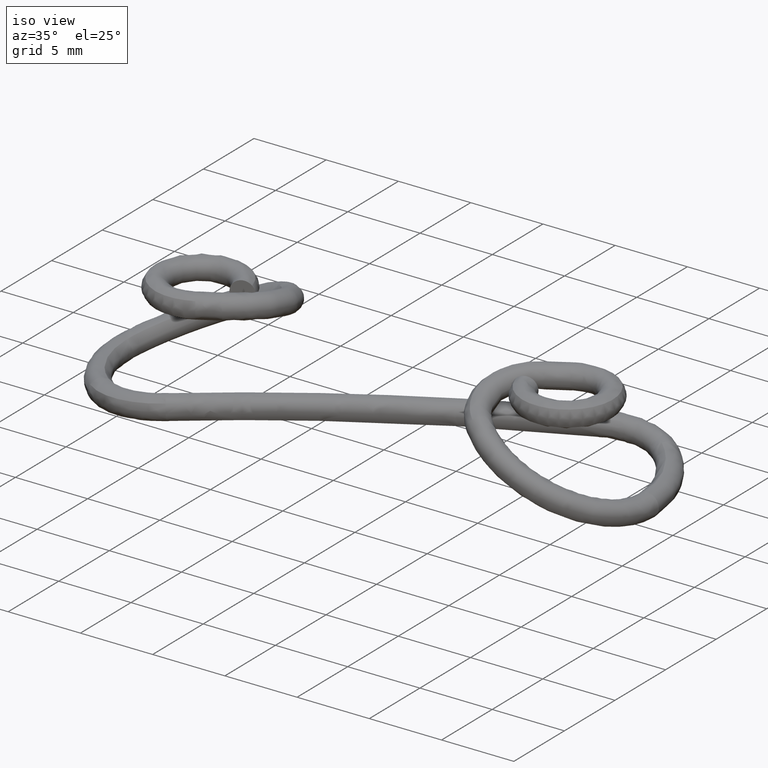
[diagram: clean part render]
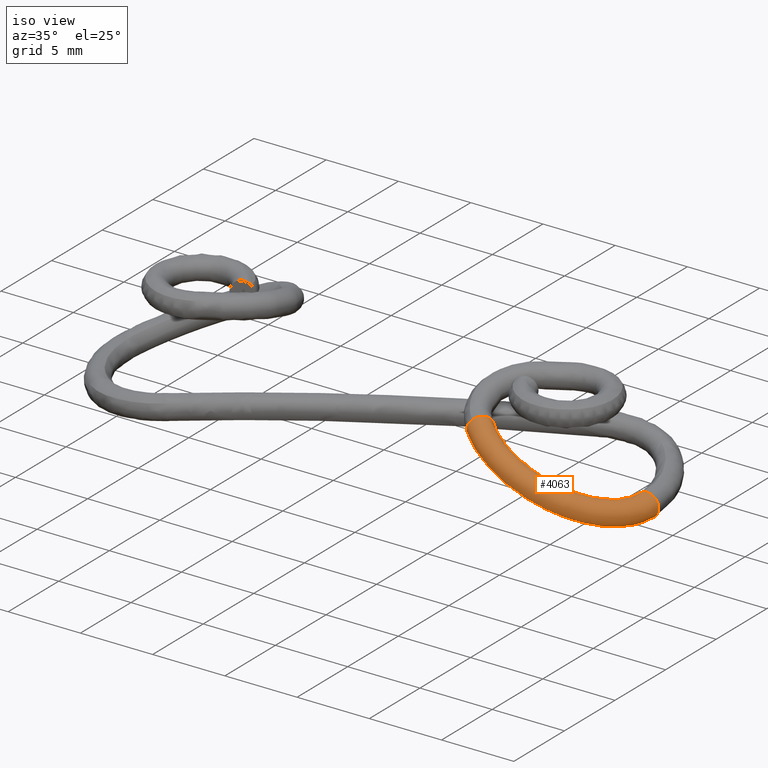
[diagram: same view with one face highlighted and labeled with its STEP entity id]
A machine part, iso view. The second image highlights one B-rep face of the part: STEP entity #4063.
In plain terms, the highlighted face is a freeform B-spline surface patch.
Its self-contained STEP definition (entity closure, byte-faithful):
#3264=CARTESIAN_POINT('',(9.303536115025272,-4.551449113464798,3.544073983156877));
#3265=VERTEX_POINT('',#3264);
#3291=CARTESIAN_POINT('',(9.893940836987280,-3.403851617559605,2.695563860032720));
#3292=VERTEX_POINT('',#3291);
#3293=CARTESIAN_POINT('',(9.303536115025272,-4.551449113464798,3.544073983156877));
#3294=CARTESIAN_POINT('',(9.314454096867252,-4.543565124474506,3.554384428957134));
#3295=CARTESIAN_POINT('',(9.325476085101704,-4.535350497602374,3.564294950743459));
#3296=CARTESIAN_POINT('',(9.353705779416730,-4.513673575982697,3.588435211506533));
#3297=CARTESIAN_POINT('',(9.371062989772804,-4.499752542904772,3.602122319208692));
#3298=CARTESIAN_POINT('',(9.406289180130157,-4.470284343511936,3.627530233524742));
#3299=CARTESIAN_POINT('',(9.424242949579728,-4.454655614507444,3.639291469439410));
#3300=CARTESIAN_POINT('',(9.477746062591674,-4.406239930035880,3.670751065305971));
#3301=CARTESIAN_POINT('',(9.513224197654303,-4.371683887905220,3.686833291477659));
#3302=CARTESIAN_POINT('',(9.583817984563090,-4.298238392648185,3.709697811936602));
#3303=CARTESIAN_POINT('',(9.619209649319751,-4.259002312428208,3.716453536382121));
#3304=CARTESIAN_POINT('',(9.686819405503279,-4.179357737374394,3.720215067471328));
#3305=CARTESIAN_POINT('',(9.719351698603619,-4.138658293612459,3.717392713500819));
#3306=CARTESIAN_POINT('',(9.766189145233945,-4.076257475390654,3.705911795079174));
#3307=CARTESIAN_POINT('',(9.781482202289277,-4.055205352103936,3.700842539673372));
#3308=CARTESIAN_POINT('',(9.810720636122870,-4.013562562628996,3.688433734000667));
#3309=CARTESIAN_POINT('',(9.824754459297367,-3.992856933411033,3.681078103836368));
#3310=CARTESIAN_POINT('',(9.865086774504915,-3.931089913919157,3.655532004474971));
#3311=CARTESIAN_POINT('',(9.889675219525786,-3.890234477586101,3.633720807846341));
#3312=CARTESIAN_POINT('',(9.933663399279103,-3.810104333524800,3.580975576476869));
#3313=CARTESIAN_POINT('',(9.952527409674932,-3.771866370283636,3.550802523422350));
#3314=CARTESIAN_POINT('',(9.976414236736849,-3.717083211855429,3.500189422232661));
#3315=CARTESIAN_POINT('',(9.983634419414610,-3.699255342709745,3.482417358669702));
#3316=CARTESIAN_POINT('',(9.996552294095633,-3.664488335831646,3.445024658240795));
#3317=CARTESIAN_POINT('',(10.002218021929419,-3.647616279315612,3.425459610048955));
#3318=CARTESIAN_POINT('',(10.016562596012740,-3.599399553840048,3.365202759799579));
#3319=CARTESIAN_POINT('',(10.022754617010980,-3.570077125231506,3.322603852753279));
#3320=CARTESIAN_POINT('',(10.026747518340530,-3.530526327838815,3.254892140820477));
#3321=CARTESIAN_POINT('',(10.027176567594520,-3.518028860580031,3.231537688538885));
#3322=CARTESIAN_POINT('',(10.026172847895619,-3.494961997460474,3.184208247222135));
#3323=CARTESIAN_POINT('',(10.024762230254650,-3.484401659055669,3.160303015367594));
#3324=CARTESIAN_POINT('',(10.017950016504029,-3.455483675491658,3.087904405292496));
#3325=CARTESIAN_POINT('',(10.009998583637540,-3.439856378022086,3.038736190655755));
#3326=CARTESIAN_POINT('',(9.987271985348411,-3.415908538839892,2.938593819600245));
#3327=CARTESIAN_POINT('',(9.972719188423065,-3.407891071404777,2.888733546832658));
#3328=CARTESIAN_POINT('',(9.946542809154533,-3.401822878812124,2.815333155073719));
#3329=CARTESIAN_POINT('',(9.937072574232223,-3.400788003481409,2.791040375375104));
#3330=CARTESIAN_POINT('',(9.921709777596909,-3.400770880927171,2.754871645884994));
#3331=CARTESIAN_POINT('',(9.916395492799426,-3.401021631312898,2.742860579883117));
#3332=CARTESIAN_POINT('',(9.905367662787674,-3.402052662869485,2.718931739131199));
#3333=CARTESIAN_POINT('',(9.899735140171444,-3.402823806727080,2.707187896507349));
#3334=CARTESIAN_POINT('',(9.893940836987280,-3.403851617559605,2.695563860032720));
#3335=B_SPLINE_CURVE_WITH_KNOTS('',3,(#3293,#3294,#3295,#3296,#3297,#3298,#3299,#3300,#3301,#3302,#3303,#3304,#3305,#3306,#3307,#3308,#3309,#3310,#3311,#3312,#3313,#3314,#3315,#3316,#3317,#3318,#3319,#3320,#3321,#3322,#3323,#3324,#3325,#3326,#3327,#3328,#3329,#3330,#3331,#3332,#3333,#3334),.UNSPECIFIED.,.F.,.U.,(4,2,2,2,2,2,2,2,2,2,2,2,2,2,2,2,2,2,2,2,4),(0.167194345875207,0.187499999999997,0.218749999999996,0.249999999999996,0.312499999999997,0.374999999999998,0.437499999999999,0.468749999999999,0.500000000000000,0.562500000000000,0.625000000000000,0.656250000000000,0.687500000000000,0.749999999999999,0.781249999999999,0.812499999999999,0.874999999999999,0.937499999999999,0.968749999999999,0.984375000000000,1.0),.UNSPECIFIED.);
#3336=EDGE_CURVE('',#3265,#3292,#3335,.T.);
#3338=CARTESIAN_POINT('',(9.115226108178472,-4.114778536989059,2.251711147043852));
#3339=VERTEX_POINT('',#3338);
#3340=CARTESIAN_POINT('',(9.115226108178472,-4.114778536989059,2.251711147043852));
#3341=CARTESIAN_POINT('',(9.118220653159815,-4.110116795116456,2.249653695021055));
#3342=CARTESIAN_POINT('',(9.121244817339415,-4.105450644551702,2.247657110662255));
#3343=CARTESIAN_POINT('',(9.151208931257653,-4.059622051698955,2.228662831158209));
#3344=CARTESIAN_POINT('',(9.180458036445435,-4.018025662349294,2.216233380589100));
#3345=CARTESIAN_POINT('',(9.243178254356133,-3.934571550924055,2.200775436181460));
#3346=CARTESIAN_POINT('',(9.275772805880633,-3.893865071035511,2.197933626318211));
#3347=CARTESIAN_POINT('',(9.326436050276595,-3.834269863114013,2.200693320706499));
#3348=CARTESIAN_POINT('',(9.343621884595931,-3.814651235369780,2.202794898935294));
#3349=CARTESIAN_POINT('',(9.378610955334169,-3.775924413297270,2.209447135256208));
#3350=CARTESIAN_POINT('',(9.396387083418070,-3.756854461925890,2.214008739183814));
#3351=CARTESIAN_POINT('',(9.449486772326660,-3.701680201641205,2.231133752672508));
#3352=CARTESIAN_POINT('',(9.484962948232138,-3.667179252561884,2.247188060342323));
#3353=CARTESIAN_POINT('',(9.538291482242130,-3.618960756797478,2.278458385882345));
#3354=CARTESIAN_POINT('',(9.556172919556182,-3.603399910467738,2.290132956105563));
#3355=CARTESIAN_POINT('',(9.591554170009896,-3.573813552327118,2.315590889198913));
#3356=CARTESIAN_POINT('',(9.608957289317381,-3.559861945920635,2.329291055710772));
#3357=CARTESIAN_POINT('',(9.660345287626754,-3.520411056565333,2.373165876896079));
#3358=CARTESIAN_POINT('',(9.693518745507470,-3.497286428822375,2.406081136813680));
#3359=CARTESIAN_POINT('',(9.757662572637035,-3.457488177560756,2.479355485310607));
#3360=CARTESIAN_POINT('',(9.788503653050565,-3.440976974147238,2.519723173383986));
#3361=CARTESIAN_POINT('',(9.844825759763022,-3.416332427241768,2.604261965818802));
#3362=CARTESIAN_POINT('',(9.870621906800322,-3.408001548450078,2.648750598430226));
#3363=CARTESIAN_POINT('',(9.893940836987280,-3.403851617559605,2.695563860032720));
#3364=B_SPLINE_CURVE_WITH_KNOTS('',3,(#3340,#3341,#3342,#3343,#3344,#3345,#3346,#3347,#3348,#3349,#3350,#3351,#3352,#3353,#3354,#3355,#3356,#3357,#3358,#3359,#3360,#3361,#3362,#3363),.UNSPECIFIED.,.F.,.U.,(4,2,2,2,2,2,2,2,2,2,2,4),(0.492907569077446,0.500000000000007,0.562500000000006,0.625000000000004,0.656250000000004,0.687500000000004,0.750000000000003,0.781250000000003,0.812500000000002,0.875000000000001,0.937500000000001,1.0),.UNSPECIFIED.);
#3365=EDGE_CURVE('',#3339,#3292,#3364,.T.);
#3367=CARTESIAN_POINT('',(8.935825242444828,-4.550179692468269,2.678430375388881));
#3368=VERTEX_POINT('',#3367);
#3513=CARTESIAN_POINT('',(9.068945223167770,-4.669412517897340,3.222273710223130));
#3514=VERTEX_POINT('',#3513);
#3515=CARTESIAN_POINT('',(9.068945223167770,-4.669412517897340,3.222273710223130));
#3516=CARTESIAN_POINT('',(9.045749511080814,-4.673489891650117,3.175785405794696));
#3517=CARTESIAN_POINT('',(9.025054358189234,-4.673395206713065,3.127054573484656));
#3518=CARTESIAN_POINT('',(8.990089513932647,-4.665225816159215,3.029197821506004));
#3519=CARTESIAN_POINT('',(8.975598736750429,-4.657231939130868,2.979701064482839));
#3520=CARTESIAN_POINT('',(8.952770044763881,-4.633217591283079,2.879537092797955));
#3521=CARTESIAN_POINT('',(8.944755341558999,-4.617491899926320,2.830199811666109));
#3522=CARTESIAN_POINT('',(8.937904214331081,-4.588584532269810,2.757961627263307));
#3523=CARTESIAN_POINT('',(8.936481615209326,-4.578045375431714,2.734142400074386));
#3524=CARTESIAN_POINT('',(8.935722900070029,-4.561306575511566,2.699823590132825));
#3525=CARTESIAN_POINT('',(8.935677865975180,-4.555836256071694,2.689082819871863));
#3526=CARTESIAN_POINT('',(8.935825242444828,-4.550179692468269,2.678430375388881));
#3527=B_SPLINE_CURVE_WITH_KNOTS('',3,(#3515,#3516,#3517,#3518,#3519,#3520,#3521,#3522,#3523,#3524,#3525,#3526),.UNSPECIFIED.,.F.,.U.,(4,2,2,2,2,4),(0.0,0.062500000000001,0.125000000000002,0.187500000000002,0.218750000000003,0.233045777406217),.UNSPECIFIED.);
#3528=EDGE_CURVE('',#3514,#3368,#3527,.T.);
#3530=CARTESIAN_POINT('',(9.068945223167770,-4.669412517897340,3.222273710223130));
#3531=CARTESIAN_POINT('',(9.092122451205080,-4.665311609675082,3.268789597622377));
#3532=CARTESIAN_POINT('',(9.118359834322927,-4.656866432790754,3.314037420980315));
#3533=CARTESIAN_POINT('',(9.174578155629511,-4.632281746128702,3.398338390576548));
#3534=CARTESIAN_POINT('',(9.204712895680178,-4.616181903353474,3.437830687605593));
#3535=CARTESIAN_POINT('',(9.258610547150472,-4.582786825860882,3.499498271569039));
#3536=CARTESIAN_POINT('',(9.280848785715717,-4.567831803460907,3.522649546894444));
#3537=CARTESIAN_POINT('',(9.303536115025272,-4.551449113464798,3.544073983156877));
#3538=B_SPLINE_CURVE_WITH_KNOTS('',3,(#3530,#3531,#3532,#3533,#3534,#3535,#3536,#3537),.UNSPECIFIED.,.F.,.U.,(4,2,2,4),(0.0,0.062499999999999,0.124999999999998,0.167194345875207),.UNSPECIFIED.);
#3539=EDGE_CURVE('',#3514,#3265,#3538,.T.);
#3615=CARTESIAN_POINT('',(17.942512129836508,0.010266255195746,-1.910733325255372));
#3616=VERTEX_POINT('',#3615);
#3617=CARTESIAN_POINT('',(9.115226108178472,-4.114778536989059,2.251711147043852));
#3618=CARTESIAN_POINT('',(9.303404269879980,-4.272981710926855,2.162976722622559));
#3619=CARTESIAN_POINT('',(9.504843625242541,-4.420042441992844,2.067989428637933));
#3620=CARTESIAN_POINT('',(9.929752939739274,-4.687086703930601,1.867626466296220));
#3621=CARTESIAN_POINT('',(10.155027242262980,-4.807225950265494,1.761399972657701));
#3622=CARTESIAN_POINT('',(10.852772474266850,-5.117831752383028,1.432383175720564));
#3623=CARTESIAN_POINT('',(11.347029480104670,-5.258110897194647,1.199319803208891));
#3624=CARTESIAN_POINT('',(12.859929110259950,-5.462613027946628,0.485922752869117));
#3625=CARTESIAN_POINT('',(13.906376247073471,-5.304369647322668,-0.007521944889490));
#3626=CARTESIAN_POINT('',(15.753658753671299,-4.446700979272010,-0.878594860162406));
#3627=CARTESIAN_POINT('',(16.551423904107612,-3.748564219800291,-1.254775337598589));
#3628=CARTESIAN_POINT('',(17.373786862452100,-2.457326434005944,-1.642554736244677));
#3629=CARTESIAN_POINT('',(17.586261119454608,-1.987799575781771,-1.742745459539959));
#3630=CARTESIAN_POINT('',(17.799979335023039,-1.251922154390312,-1.843522762641964));
#3631=CARTESIAN_POINT('',(17.853761398719659,-1.001474477532053,-1.868883311906538));
#3632=CARTESIAN_POINT('',(17.925004094946829,-0.497292258723800,-1.902477298138348));
#3633=CARTESIAN_POINT('',(17.942721004977852,-0.241546144160389,-1.910831580938566));
#3634=CARTESIAN_POINT('',(17.942512129836508,0.010266255195746,-1.910733325255372));
#3635=B_SPLINE_CURVE_WITH_KNOTS('',3,(#3617,#3618,#3619,#3620,#3621,#3622,#3623,#3624,#3625,#3626,#3627,#3628,#3629,#3630,#3631,#3632,#3633,#3634),.UNSPECIFIED.,.F.,.U.,(4,2,2,2,2,2,2,2,4),(0.001862415537835,0.062500000000000,0.125000000000000,0.250000000000000,0.500000000000000,0.750000000000000,0.875000000000000,0.937500000000000,0.999540148626635),.UNSPECIFIED.);
#3636=EDGE_CURVE('',#3339,#3616,#3635,.T.);
#3651=CARTESIAN_POINT('',(18.576434149344951,0.029800368771868,-1.867520831570873));
#3652=VERTEX_POINT('',#3651);
#3666=CARTESIAN_POINT('',(8.935825242444828,-4.550179692468269,2.678430375388881));
#3667=CARTESIAN_POINT('',(9.135610233343520,-4.718640409938494,2.584223294469402));
#3668=CARTESIAN_POINT('',(9.367021500634628,-4.888847769868191,2.475103093241942));
#3669=CARTESIAN_POINT('',(9.833408870420188,-5.181960084684336,2.255181735984236));
#3670=CARTESIAN_POINT('',(10.078934728350831,-5.312869140770019,2.139405923932543));
#3671=CARTESIAN_POINT('',(10.838455470005041,-5.650975056528529,1.781259836243789));
#3672=CARTESIAN_POINT('',(11.375215697469169,-5.803186585080023,1.528154760739666));
#3673=CARTESIAN_POINT('',(13.016757106938430,-6.025078366411869,0.754098860584665));
#3674=CARTESIAN_POINT('',(14.150669552125800,-5.854151108383299,0.219411495948844));
#3675=CARTESIAN_POINT('',(16.162046835611608,-4.920296589167878,-0.729037211385921));
#3676=CARTESIAN_POINT('',(17.036889332486009,-4.157501316575835,-1.141562009825656));
#3677=CARTESIAN_POINT('',(17.944678171074511,-2.732132097995317,-1.569622184837110));
#3678=CARTESIAN_POINT('',(18.180363722087801,-2.211934174911472,-1.680757672328949));
#3679=CARTESIAN_POINT('',(18.417809534195150,-1.394357571974568,-1.792723102941064));
#3680=CARTESIAN_POINT('',(18.477655408851572,-1.115763756051611,-1.820942862307868));
#3681=CARTESIAN_POINT('',(18.557251348461229,-0.552465683773163,-1.858475518105032));
#3682=CARTESIAN_POINT('',(18.576963064070711,-0.251127675872212,-1.867770325948803));
#3683=CARTESIAN_POINT('',(18.576450138376192,0.021343490874426,-1.867528373745939));
#3684=CARTESIAN_POINT('',(18.576442117776018,0.025591524577649,-1.867524590352250));
#3685=CARTESIAN_POINT('',(18.576434149344951,0.029800368771868,-1.867520831570873));
#3686=B_SPLINE_CURVE_WITH_KNOTS('',3,(#3666,#3667,#3668,#3669,#3670,#3671,#3672,#3673,#3674,#3675,#3676,#3677,#3678,#3679,#3680,#3681,#3682,#3683,#3684,#3685),.UNSPECIFIED.,.F.,.U.,(4,2,2,2,2,2,2,2,2,4),(0.001173783008164,0.062500000000000,0.125000000000000,0.250000000000000,0.500000000000000,0.750000000000000,0.875000000000000,0.937500000000000,1.0,1.001000342492842),.UNSPECIFIED.);
#3687=EDGE_CURVE('',#3368,#3652,#3686,.T.);
#3692=CARTESIAN_POINT('',(8.850767945527426,-4.467183250201960,2.698593841923237));
#3693=CARTESIAN_POINT('',(8.847265166287309,-4.575739335832809,2.886594530062248));
#3694=CARTESIAN_POINT('',(8.908659249773917,-4.626077596475307,3.107415158685444));
#3695=CARTESIAN_POINT('',(9.119635922296620,-4.581824165670533,3.475166786280070));
#3696=CARTESIAN_POINT('',(9.411290763736606,-4.401993199683039,3.769938347674925));
#3697=CARTESIAN_POINT('',(9.847328043600351,-3.882060135240415,3.758630651112075));
#3698=CARTESIAN_POINT('',(10.025598602022050,-3.416346947613751,3.298285624712599));
#3699=CARTESIAN_POINT('',(9.903916767460038,-3.323459173294258,2.873012332308098));
#3700=CARTESIAN_POINT('',(9.696514047109414,-3.367209856679172,2.511934927007003));
#3701=CARTESIAN_POINT('',(9.551198250464241,-3.456682157595592,2.364836307537311));
#3702=CARTESIAN_POINT('',(9.260146162869823,-3.719741375404530,2.221175402418823));
#3703=CARTESIAN_POINT('',(9.116200040968423,-3.891280867649239,2.224723642729182));
#3704=CARTESIAN_POINT('',(9.013506835922964,-4.055213485485694,2.302062801925965));
#3705=CARTESIAN_POINT('',(8.874630110799124,-4.487421172174330,2.687341807762955));
#3706=CARTESIAN_POINT('',(8.870999446759631,-4.595868810920984,2.875402799068710));
#3707=CARTESIAN_POINT('',(8.932334229074195,-4.646156783759045,3.096251390737418));
#3708=CARTESIAN_POINT('',(9.143363034329108,-4.601947561265711,3.463978435513297));
#3709=CARTESIAN_POINT('',(9.435229725941776,-4.422296244521815,3.758650100467377));
#3710=CARTESIAN_POINT('',(9.871879514111086,-3.902882588913471,3.747053579973450));
#3711=CARTESIAN_POINT('',(10.050698707138910,-3.437634645523017,3.286449848831165));
#3712=CARTESIAN_POINT('',(9.929126299364910,-3.344839665896557,2.861124957003780));
#3713=CARTESIAN_POINT('',(9.721672038542611,-3.388546643201478,2.500071855245189));
#3714=CARTESIAN_POINT('',(9.576250838902649,-3.477929562230933,2.353022937807330));
#3715=CARTESIAN_POINT('',(9.284888853859142,-3.740725986258038,2.209508162624819));
#3716=CARTESIAN_POINT('',(9.140740649476559,-3.912094111967961,2.213151693490561));
#3717=CARTESIAN_POINT('',(9.037854323221101,-4.075862962373973,2.290581917619102));
#3718=CARTESIAN_POINT('',(8.898537853408694,-4.507697253440623,2.676068281933467));
#3719=CARTESIAN_POINT('',(8.894789301923503,-4.616044913405145,2.864184862225006));
#3720=CARTESIAN_POINT('',(8.956069418863573,-4.666286525250658,3.085059230961899));
#3721=CARTESIAN_POINT('',(9.167146281215251,-4.622118059304850,3.452763614755913));
#3722=CARTESIAN_POINT('',(9.459208261440896,-4.442632364193770,3.747343192754792));
#3723=CARTESIAN_POINT('',(9.896422674921636,-3.923697559757495,3.735480427214803));
#3724=CARTESIAN_POINT('',(10.075747613082211,-3.458878532087972,3.274638215555545));
#3725=CARTESIAN_POINT('',(9.954276077796219,-3.366169101107134,2.849265758024543));
#3726=CARTESIAN_POINT('',(9.746774305834922,-3.409835784883413,2.488235059805319));
#3727=CARTESIAN_POINT('',(9.601255943165260,-3.499136301260843,2.341231958902416));
#3728=CARTESIAN_POINT('',(9.309608287044380,-3.761690451482925,2.197851889882758));
#3729=CARTESIAN_POINT('',(9.165273798030579,-3.932900591689567,2.201583261940204));
#3730=CARTESIAN_POINT('',(9.062209447836164,-4.096518462368217,2.279097431989814));
#3731=CARTESIAN_POINT('',(9.126434075713915,-4.700956567263945,2.568605440687739));
#3732=CARTESIAN_POINT('',(9.125257436996780,-4.811485060659233,2.755509253822758));
#3733=CARTESIAN_POINT('',(9.187730168937005,-4.862737946015964,2.975821253446495));
#3734=CARTESIAN_POINT('',(9.397758578219349,-4.817680468726659,3.344020027821630));
#3735=CARTESIAN_POINT('',(9.685559999938056,-4.634582088375188,3.640608641853712));
#3736=CARTESIAN_POINT('',(10.110456149784740,-4.105202140664152,3.634554465837364));
#3737=CARTESIAN_POINT('',(10.278747402595320,-3.631027197993669,3.178915109956403));
#3738=CARTESIAN_POINT('',(10.155075168446070,-3.536451691837246,2.754580376307739));
#3739=CARTESIAN_POINT('',(9.948609938453290,-3.580997287308475,2.393060904102365));
#3740=CARTESIAN_POINT('',(9.805211355158882,-3.672095243055041,2.245058236325679));
#3741=CARTESIAN_POINT('',(9.519796102810924,-3.939934089631853,2.098739321674993));
#3742=CARTESIAN_POINT('',(9.379525730572562,-4.114590355297447,2.100554288399262));
#3743=CARTESIAN_POINT('',(9.280345274950243,-4.281501536605838,2.176237035612647));
#3744=CARTESIAN_POINT('',(9.361573653754670,-4.874364857604137,2.457727046609402));
#3745=CARTESIAN_POINT('',(9.367417916044859,-4.990290057737943,2.641320203856077));
#3746=CARTESIAN_POINT('',(9.433146292328694,-5.044045448885218,2.860097027566183));
#3747=CARTESIAN_POINT('',(9.640312598108567,-4.996788020084111,3.229645406472687));
#3748=CARTESIAN_POINT('',(9.916483394749768,-4.804749665353932,3.531718358962275));
#3749=CARTESIAN_POINT('',(10.307752704179871,-4.249522093113589,3.541520680156270));
#3750=CARTESIAN_POINT('',(10.445923802878429,-3.752194935159677,3.100084268523345));
#3751=CARTESIAN_POINT('',(10.316244019857340,-3.653001623843583,2.678582351777453));
#3752=CARTESIAN_POINT('',(10.112608378042140,-3.699722178204415,2.315728607410725));
#3753=CARTESIAN_POINT('',(9.974996444343043,-3.795268089094782,2.164997286212179));
#3754=CARTESIAN_POINT('',(9.706594632019383,-4.076184481316572,2.010655805035900));
#3755=CARTESIAN_POINT('',(9.577418632354521,-4.259368553120021,2.007239299353553));
#3756=CARTESIAN_POINT('',(9.488840572536805,-4.434429384357840,2.077922562303168));
#3757=CARTESIAN_POINT('',(9.831387282236713,-5.169613918899921,2.236189774679350));
#3758=CARTESIAN_POINT('',(9.846965249306834,-5.291657093094222,2.415193072730536));
#3759=CARTESIAN_POINT('',(9.917207218685464,-5.348249450883562,2.631841543749143));
#3760=CARTESIAN_POINT('',(10.120405538122300,-5.298498055157864,3.003260998367720));
#3761=CARTESIAN_POINT('',(10.380451762119289,-5.096324912318289,3.312937378297604));
#3762=CARTESIAN_POINT('',(10.725101175547181,-4.511795206818432,3.344722979566821));
#3763=CARTESIAN_POINT('',(10.821514006547361,-3.988221556387501,2.922977381791814));
#3764=CARTESIAN_POINT('',(10.683505417055930,-3.883793268211327,2.505402854444994));
#3765=CARTESIAN_POINT('',(10.483792682748261,-3.932979456743042,2.140699290970066));
#3766=CARTESIAN_POINT('',(10.354203297371161,-4.033567785086333,1.986184994222472));
#3767=CARTESIAN_POINT('',(10.109388736912820,-4.329309521250442,1.820721112345620));
#3768=CARTESIAN_POINT('',(9.995593858077250,-4.522161131806568,1.810051748633378));
#3769=CARTESIAN_POINT('',(9.921714848438235,-4.706460806573022,1.873803779113171));
#3770=CARTESIAN_POINT('',(10.566536861817960,-5.561712127083096,1.889535223922048));
#3771=CARTESIAN_POINT('',(10.597102598170810,-5.691721745288692,2.061471146065379));
#3772=CARTESIAN_POINT('',(10.674294511826350,-5.752008226763139,2.274842420336470));
#3773=CARTESIAN_POINT('',(10.871383007817080,-5.699009352171546,2.649142918705269));
#3774=CARTESIAN_POINT('',(11.106600934975130,-5.483639333327481,2.970526905258044));
#3775=CARTESIAN_POINT('',(11.379465948861521,-4.860954237031125,3.036161929101786));
#3776=CARTESIAN_POINT('',(11.411580215224260,-4.303204049271214,2.644735861742397));
#3777=CARTESIAN_POINT('',(11.260747088717720,-4.191959095445684,2.233208653528211));
#3778=CARTESIAN_POINT('',(11.067074766420980,-4.244355869854685,1.865656776770368));
#3779=CARTESIAN_POINT('',(10.949838341676200,-4.351510113250909,1.705317529376899));
#3780=CARTESIAN_POINT('',(10.741342966433679,-4.666556474644255,1.522727594266177));
#3781=CARTESIAN_POINT('',(10.651231635129919,-4.871996544741444,1.500890422317583));
#3782=CARTESIAN_POINT('',(10.599985934830730,-5.068326460687244,1.553969876903500));
#3783=CARTESIAN_POINT('',(11.370106042317451,-5.789618359524485,1.510617897426738));
#3784=CARTESIAN_POINT('',(11.416395459599229,-5.924041608493290,1.675139429764126));
#3785=CARTESIAN_POINT('',(11.500878569306810,-5.986374745762496,1.885072592441962));
#3786=CARTESIAN_POINT('',(11.691557257420479,-5.931576707458219,2.262395590084509));
#3787=CARTESIAN_POINT('',(11.900727815744361,-5.708895293919088,2.596062027981367));
#3788=CARTESIAN_POINT('',(12.098283783495139,-5.065071112867806,2.697208496408022));
#3789=CARTESIAN_POINT('',(12.062942383490819,-4.488386199304594,2.337590668312308));
#3790=CARTESIAN_POINT('',(11.898655017130460,-4.373364606194508,1.932407711119689));
#3791=CARTESIAN_POINT('',(11.711319683338580,-4.427540105081815,1.561867672545828));
#3792=CARTESIAN_POINT('',(11.607042750883609,-4.538332027280012,1.395417468820570));
#3793=CARTESIAN_POINT('',(11.436649845009461,-4.864073646170803,1.194860585529262));
#3794=CARTESIAN_POINT('',(11.371384934163711,-5.076488052192752,1.161307260894072));
#3795=CARTESIAN_POINT('',(11.343883851098219,-5.279483041407818,1.203190110260119));
#3796=CARTESIAN_POINT('',(13.008439867638360,-6.011070139405477,0.738073245316439));
#3797=CARTESIAN_POINT('',(13.086453694834679,-6.149781719994180,0.887635358002960));
#3798=CARTESIAN_POINT('',(13.185647670568761,-6.214103429995308,1.090631716533487));
#3799=CARTESIAN_POINT('',(13.363393818471300,-6.157557370234951,1.474052961445851));
#3800=CARTESIAN_POINT('',(13.520010710323589,-5.927772215581946,1.832500706639781));
#3801=CARTESIAN_POINT('',(13.565621685869459,-5.263409201206878,2.005295754453337));
#3802=CARTESIAN_POINT('',(13.394180409742370,-4.668327153335870,1.709854854051477));
#3803=CARTESIAN_POINT('',(13.202747493752559,-4.549636097440807,1.317472187541610));
#3804=CARTESIAN_POINT('',(13.028197778616500,-4.605539759913050,0.940903181509954));
#3805=CARTESIAN_POINT('',(12.950068164126620,-4.719866045809360,0.762123396140811));
#3806=CARTESIAN_POINT('',(12.856551534439500,-5.055999204721347,0.525316052090382));
#3807=CARTESIAN_POINT('',(12.841417243435069,-5.275189908021720,0.468123990546366));
#3808=CARTESIAN_POINT('',(12.861823763162240,-5.484660724390047,0.487416350867820));
#3809=CARTESIAN_POINT('',(14.140173383055121,-5.840458186307740,0.204412362877781));
#3810=CARTESIAN_POINT('',(14.239757190491289,-5.976041618788925,0.343803304937873));
#3811=CARTESIAN_POINT('',(14.348953346828139,-6.038912806599825,0.542083206408648));
#3812=CARTESIAN_POINT('',(14.517906454537570,-5.983642029354617,0.929650746827830));
#3813=CARTESIAN_POINT('',(14.638791217808439,-5.759038982551051,1.304947722880104));
#3814=CARTESIAN_POINT('',(14.581092179476951,-5.109658494605497,1.526457872276325));
#3815=CARTESIAN_POINT('',(14.317114236498350,-4.527996480767241,1.274651978366818));
#3816=CARTESIAN_POINT('',(14.107224575597391,-4.411982029512724,0.890972458525761));
#3817=CARTESIAN_POINT('',(13.941368006460699,-4.466624897933460,0.510304261384218));
#3818=CARTESIAN_POINT('',(13.881016396613830,-4.578372900806785,0.323141384485713));
#3819=CARTESIAN_POINT('',(13.839769262864859,-4.906925650885425,0.061686731731195));
#3820=CARTESIAN_POINT('',(13.858719642601390,-5.121173227527176,-0.011577713653953));
#3821=CARTESIAN_POINT('',(13.911699368817850,-5.325920131771381,-0.007645016966250));
#3822=CARTESIAN_POINT('',(16.147462758374392,-4.908500329306318,-0.742110652261024));
#3823=CARTESIAN_POINT('',(16.287514290515858,-5.025295139715905,-0.621801977697757));
#3824=CARTESIAN_POINT('',(16.415475682606289,-5.079453937201205,-0.432370689556741));
#3825=CARTESIAN_POINT('',(16.567932093653610,-5.031842544823577,-0.037024249266824));
#3826=CARTESIAN_POINT('',(16.621779396212261,-4.838364351191693,0.369883764146587));
#3827=CARTESIAN_POINT('',(16.370259161210662,-4.278972826172899,0.682788919031153));
#3828=CARTESIAN_POINT('',(15.932671988657949,-3.777915398061080,0.512847221411309));
#3829=CARTESIAN_POINT('',(15.688155359893100,-3.677977670868209,0.145495801757674));
#3830=CARTESIAN_POINT('',(15.538608075314199,-3.725048170571115,-0.242862922411009));
#3831=CARTESIAN_POINT('',(15.511609986057699,-3.821310451988635,-0.445753414501860));
#3832=CARTESIAN_POINT('',(15.568426286905030,-4.104333408134438,-0.753449181732433));
#3833=CARTESIAN_POINT('',(15.651323339589000,-4.288891276448844,-0.856867225511923));
#3834=CARTESIAN_POINT('',(15.765414068962279,-4.465265072973415,-0.881750987315489));
#3835=CARTESIAN_POINT('',(17.020385118568878,-4.147315228517519,-1.153730976917302));
#3836=CARTESIAN_POINT('',(17.179444847144509,-4.248164349511156,-1.042385482063202));
#3837=CARTESIAN_POINT('',(17.316220512153031,-4.294929022236495,-0.857110501570368));
#3838=CARTESIAN_POINT('',(17.460928241669428,-4.253818001369346,-0.458110225665297));
#3839=CARTESIAN_POINT('',(17.483287242155019,-4.086755032490958,-0.036354127575339));
#3840=CARTESIAN_POINT('',(17.140726813368619,-3.603735992383116,0.319480382579683));
#3841=CARTESIAN_POINT('',(16.621593232403800,-3.171086709886970,0.187991313320406));
#3842=CARTESIAN_POINT('',(16.360811869927510,-3.084793151557300,-0.171690586937850));
#3843=CARTESIAN_POINT('',(16.218925237465498,-3.125437128325305,-0.563661637078170));
#3844=CARTESIAN_POINT('',(16.207593698204960,-3.208556895990056,-0.773939579290400));
#3845=CARTESIAN_POINT('',(16.310471589473099,-3.452939317368483,-1.103355361573694));
#3846=CARTESIAN_POINT('',(16.423405178900381,-3.612299908985549,-1.220936920425430));
#3847=CARTESIAN_POINT('',(16.566200499992249,-3.764593800775435,-1.259356128107251));
#3848=CARTESIAN_POINT('',(17.926048713545249,-2.725296099590532,-1.580790197754233));
#3849=CARTESIAN_POINT('',(18.106175545067980,-2.793067236466041,-1.479378745320702));
#3850=CARTESIAN_POINT('',(18.252720231711319,-2.824493400707567,-1.298710277432356));
#3851=CARTESIAN_POINT('',(18.388840017751530,-2.796866777577838,-0.895660417919998));
#3852=CARTESIAN_POINT('',(18.376300073399442,-2.684599858579092,-0.457447970831293));
#3853=CARTESIAN_POINT('',(17.932838371252348,-2.360008932890906,-0.054034183538832));
#3854=CARTESIAN_POINT('',(17.323325577127360,-2.069266505963787,-0.142905578235501));
#3855=CARTESIAN_POINT('',(17.044517707564172,-2.011276665560632,-0.494087207408371));
#3856=CARTESIAN_POINT('',(16.911121454954539,-2.038589435973237,-0.890061835723652));
#3857=CARTESIAN_POINT('',(16.917153381701269,-2.094446220117246,-1.108527396721625));
#3858=CARTESIAN_POINT('',(17.071082038524970,-2.258672218781203,-1.462015804073964));
#3859=CARTESIAN_POINT('',(17.217305592268371,-2.365763239251646,-1.595295008610545));
#3860=CARTESIAN_POINT('',(17.391914670499030,-2.468105439208884,-1.648715766991449));
#3861=CARTESIAN_POINT('',(18.278692554214260,-1.946836611976328,-1.747076890366579));
#3862=CARTESIAN_POINT('',(18.467405399341089,-1.995860151390573,-1.649714111524126));
#3863=CARTESIAN_POINT('',(18.617931509611012,-2.018592910534898,-1.470923055604611));
#3864=CARTESIAN_POINT('',(18.750551249257640,-1.998608821412208,-1.066222774131247));
#3865=CARTESIAN_POINT('',(18.723788071541868,-1.917398622152646,-0.621303462605977));
#3866=CARTESIAN_POINT('',(18.239203535193560,-1.682599916581083,-0.198498495596045));
#3867=CARTESIAN_POINT('',(17.592856209350298,-1.472285978017152,-0.270000829084166));
#3868=CARTESIAN_POINT('',(17.306701527522399,-1.430337833856448,-0.617718121235551));
#3869=CARTESIAN_POINT('',(17.176765559007279,-1.450094894260972,-1.015324421882562));
#3870=CARTESIAN_POINT('',(17.189874050089070,-1.490499855879982,-1.237126886414834));
#3871=CARTESIAN_POINT('',(17.364608703857630,-1.609295644973542,-1.600426213510005));
#3872=CARTESIAN_POINT('',(17.524399754195109,-1.686761867761951,-1.740103074478737));
#3873=CARTESIAN_POINT('',(17.711974696030289,-1.760792971066930,-1.799637793538339));
#3874=CARTESIAN_POINT('',(18.457691300804751,-1.112879564875698,-1.831482475038969));
#3875=CARTESIAN_POINT('',(18.650889032755440,-1.141062515475903,-1.736234512650466));
#3876=CARTESIAN_POINT('',(18.803494842433270,-1.154131327274641,-1.558424124180718));
#3877=CARTESIAN_POINT('',(18.934286375960440,-1.142642968388560,-1.152861765126833));
#3878=CARTESIAN_POINT('',(18.900093770237181,-1.095956649403149,-0.704439159714720));
#3879=CARTESIAN_POINT('',(18.394028876777650,-0.960974572889616,-0.271505283225777));
#3880=CARTESIAN_POINT('',(17.728441135927799,-0.840068184481374,-0.333934935990587));
#3881=CARTESIAN_POINT('',(17.438448840148791,-0.815952651721264,-0.679842628601749));
#3882=CARTESIAN_POINT('',(17.310320308607739,-0.827310498621456,-1.078301213286836));
#3883=CARTESIAN_POINT('',(17.327125204256848,-0.850538602069340,-1.301846691078811));
#3884=CARTESIAN_POINT('',(17.512727779827468,-0.918832356998608,-1.670270709331328));
#3885=CARTESIAN_POINT('',(17.679605760747201,-0.963366467888678,-1.813289361964723));
#3886=CARTESIAN_POINT('',(17.873953378440628,-1.005925818631926,-1.876017688111416));
#3887=CARTESIAN_POINT('',(18.537097142027719,-0.551044893189055,-1.868925734180405));
#3888=CARTESIAN_POINT('',(18.732290202960691,-0.565110524746493,-1.774618654969187));
#3889=CARTESIAN_POINT('',(18.885821276971630,-0.571633021795273,-1.597244568309073));
#3890=CARTESIAN_POINT('',(19.015799456241560,-0.565899627353614,-1.191298677845455));
#3891=CARTESIAN_POINT('',(18.978301514859190,-0.542599620463671,-0.741317464932757));
#3892=CARTESIAN_POINT('',(18.462680028556989,-0.475232861226718,-0.303877245123166));
#3893=CARTESIAN_POINT('',(17.788532227219449,-0.414890732982541,-0.362270462302397));
#3894=CARTESIAN_POINT('',(17.496832565167299,-0.402854931668583,-0.707373058502575));
#3895=CARTESIAN_POINT('',(17.369508147944849,-0.408523194044349,-1.106210817570522));
#3896=CARTESIAN_POINT('',(17.387957565582361,-0.420115775566925,-1.330531757998448));
#3897=CARTESIAN_POINT('',(17.578395265125160,-0.454199690353884,-1.701235744539358));
#3898=CARTESIAN_POINT('',(17.748426215502391,-0.476425742803105,-1.845741157474318));
#3899=CARTESIAN_POINT('',(17.945786993621390,-0.497666274992276,-1.909890317969084));
#3900=CARTESIAN_POINT('',(18.556759137224361,-0.250794563674287,-1.878197208043491));
#3901=CARTESIAN_POINT('',(18.752444492926891,-0.254092618913730,-1.784122266926119));
#3902=CARTESIAN_POINT('',(18.906203858638062,-0.255622102708312,-1.606855829591597));
#3903=CARTESIAN_POINT('',(19.035981387965599,-0.254278136651405,-1.200815324076447));
#3904=CARTESIAN_POINT('',(18.997667974642741,-0.248815356538200,-0.750449581175786));
#3905=CARTESIAN_POINT('',(18.479688698788440,-0.233020214469839,-0.311897562487570));
#3906=CARTESIAN_POINT('',(17.803428946932680,-0.218871718766278,-0.369294904435033));
#3907=CARTESIAN_POINT('',(17.511308023175332,-0.216049385273744,-0.714198857677212));
#3908=CARTESIAN_POINT('',(17.384181976588799,-0.217378085835917,-1.113130157005836));
#3909=CARTESIAN_POINT('',(17.403037120480590,-0.220096012718415,-1.337642414761002));
#3910=CARTESIAN_POINT('',(17.594667727230139,-0.228087368052714,-1.708908908202879));
#3911=CARTESIAN_POINT('',(17.765476573922712,-0.233298597590469,-1.853781132607864));
#3912=CARTESIAN_POINT('',(17.963580758816612,-0.238278820144024,-1.918280841274851));
#3913=CARTESIAN_POINT('',(18.556191515441750,0.050727633069004,-1.877929550032284));
#3914=CARTESIAN_POINT('',(18.751869440600959,0.051471934300426,-1.783851105095041));
#3915=CARTESIAN_POINT('',(18.905625364671948,0.051816924512131,-1.606583044880034));
#3916=CARTESIAN_POINT('',(19.035405936260069,0.051513014997147,-1.200543973920724));
#3917=CARTESIAN_POINT('',(18.997104850121779,0.050279356125521,-0.750184043816524));
#3918=CARTESIAN_POINT('',(18.479161189442959,0.046713516882403,-0.311648819210308));
#3919=CARTESIAN_POINT('',(17.802933325391169,0.043520029815513,-0.369061197625118));
#3920=CARTESIAN_POINT('',(17.510818751867632,0.042883448778324,-0.713968145274639));
#3921=CARTESIAN_POINT('',(17.383689697656479,0.043183902925480,-1.112898026379506));
#3922=CARTESIAN_POINT('',(17.402538708322538,0.043797692572528,-1.337407392055516));
#3923=CARTESIAN_POINT('',(17.594151291212501,0.045601987837957,-1.708665386474665));
#3924=CARTESIAN_POINT('',(17.764948387523809,0.046778451502095,-1.853532070070838));
#3925=CARTESIAN_POINT('',(17.963041345293821,0.047902663418916,-1.918026484667674));
#3926=CARTESIAN_POINT('',(18.556131642773249,0.081754350774836,-1.877901317501693));
#3927=CARTESIAN_POINT('',(18.751809837519900,0.082360256016537,-1.783822999686487));
#3928=CARTESIAN_POINT('',(18.905565886623108,0.082641070867739,-1.606554998429538));
#3929=CARTESIAN_POINT('',(19.035346348387520,0.082393578785847,-1.200515875683634));
#3930=CARTESIAN_POINT('',(18.997044815760479,0.081389182304719,-0.750155735040847));
#3931=CARTESIAN_POINT('',(18.479099864033412,0.078486194593850,-0.311619901650024));
#3932=CARTESIAN_POINT('',(17.802870843491110,0.075886435687860,-0.369031734729957));
#3933=CARTESIAN_POINT('',(17.510756039246129,0.075368275650938,-0.713938573584420));
#3934=CARTESIAN_POINT('',(17.383627093611420,0.075612953301151,-1.112868505887749));
#3935=CARTESIAN_POINT('',(17.402476326421439,0.076112676756039,-1.337377976314159));
#3936=CARTESIAN_POINT('',(17.594089562489799,0.077581603585693,-1.708636278734926));
#3937=CARTESIAN_POINT('',(17.764887084751599,0.078539375223931,-1.853503163185018));
#3938=CARTESIAN_POINT('',(17.962980449595900,0.079454592892314,-1.917997769734841));
#3939=CARTESIAN_POINT('',(18.556071793428980,0.112531039846518,-1.877873095969491));
#3940=CARTESIAN_POINT('',(18.751750352567591,0.112943465490983,-1.783794949980724));
#3941=CARTESIAN_POINT('',(18.905506570543590,0.113134562258807,-1.606527028354520));
#3942=CARTESIAN_POINT('',(19.035286883434299,0.112965942564130,-1.200487835408288));
#3943=CARTESIAN_POINT('',(18.996984746718969,0.112282058222636,-0.750127409911971));
#3944=CARTESIAN_POINT('',(18.479038049068919,0.110305746548138,-0.311590753243598));
#3945=CARTESIAN_POINT('',(17.802807465004491,0.108536028205897,-0.369001849055792));
#3946=CARTESIAN_POINT('',(17.510692349156450,0.108183422442377,-0.713908540976064));
#3947=CARTESIAN_POINT('',(17.383563550702331,0.108350123743372,-1.112838542681340));
#3948=CARTESIAN_POINT('',(17.402413084068058,0.108690381010939,-1.337348154832664));
#3949=CARTESIAN_POINT('',(17.594027203593189,0.109690457913513,-1.708606873841174));
#3950=CARTESIAN_POINT('',(17.764825301880681,0.110342494934137,-1.853474029912091));
#3951=CARTESIAN_POINT('',(17.962919217152489,0.110965535617997,-1.917968896012082));
#3952=B_SPLINE_SURFACE_WITH_KNOTS('',3,3,((#3692,#3705,#3718,#3731,#3744,#3757,#3770,#3783,#3796,#3809,#3822,#3835,#3848,#3861,#3874,#3887,#3900,#3913,#3926,#3939),(#3693,#3706,#3719,#3732,#3745,#3758,#3771,#3784,#3797,#3810,#3823,#3836,#3849,#3862,#3875,#3888,#3901,#3914,#3927,#3940),(#3694,#3707,#3720,#3733,#3746,#3759,#3772,#3785,#3798,#3811,#3824,#3837,#3850,#3863,#3876,#3889,#3902,#3915,#3928,#3941),(#3695,#3708,#3721,#3734,#3747,#3760,#3773,#3786,#3799,#3812,#3825,#3838,#3851,#3864,#3877,#3890,#3903,#3916,#3929,#3942),(#3696,#3709,#3722,#3735,#3748,#3761,#3774,#3787,#3800,#3813,#3826,#3839,#3852,#3865,#3878,#3891,#3904,#3917,#3930,#3943),(#3697,#3710,#3723,#3736,#3749,#3762,#3775,#3788,#3801,#3814,#3827,#3840,#3853,#3866,#3879,#3892,#3905,#3918,#3931,#3944),(#3698,#3711,#3724,#3737,#3750,#3763,#3776,#3789,#3802,#3815,#3828,#3841,#3854,#3867,#3880,#3893,#3906,#3919,#3932,#3945),(#3699,#3712,#3725,#3738,#3751,#3764,#3777,#3790,#3803,#3816,#3829,#3842,#3855,#3868,#3881,#3894,#3907,#3920,#3933,#3946),(#3700,#3713,#3726,#3739,#3752,#3765,#3778,#3791,#3804,#3817,#3830,#3843,#3856,#3869,#3882,#3895,#3908,#3921,#3934,#3947),(#3701,#3714,#3727,#3740,#3753,#3766,#3779,#3792,#3805,#3818,#3831,#3844,#3857,#3870,#3883,#3896,#3909,#3922,#3935,#3948),(#3702,#3715,#3728,#3741,#3754,#3767,#3780,#3793,#3806,#3819,#3832,#3845,#3858,#3871,#3884,#3897,#3910,#3923,#3936,#3949),(#3703,#3716,#3729,#3742,#3755,#3768,#3781,#3794,#3807,#3820,#3833,#3846,#3859,#3872,#3885,#3898,#3911,#3924,#3937,#3950),(#3704,#3717,#3730,#3743,#3756,#3769,#3782,#3795,#3808,#3821,#3834,#3847,#3860,#3873,#3886,#3899,#3912,#3925,#3938,#3951)),.UNSPECIFIED.,.F.,.F.,.U.,(4,2,1,1,1,2,2,4),(4,2,2,1,2,2,2,1,2,2,4),(0.0,0.651385553092211,1.280024020531460,1.908662487970709,2.537300955409958,3.165939422849207,3.794577890288455,4.419951768105003),(0.0,0.119218075861330,1.054564353660892,1.989910631460453,3.860603187059576,7.601988298257822,11.343373409456071,13.214065965055189,14.149412242854750,15.084758520654310,15.202476563539671),.UNSPECIFIED.);
#3953=ORIENTED_EDGE('',*,*,#3365,.T.);
#3954=ORIENTED_EDGE('',*,*,#3336,.F.);
#3955=ORIENTED_EDGE('',*,*,#3539,.F.);
#3956=ORIENTED_EDGE('',*,*,#3528,.T.);
#3957=ORIENTED_EDGE('',*,*,#3687,.T.);
#3958=CARTESIAN_POINT('',(18.292820325942650,0.015229806762131,-0.361443525144128));
#3959=VERTEX_POINT('',#3958);
#3960=CARTESIAN_POINT('',(18.576434149344951,0.029800368771868,-1.867520831570873));
#3961=CARTESIAN_POINT('',(18.578272936237742,0.029853783438076,-1.866571539931166));
#3962=CARTESIAN_POINT('',(18.580108140760650,0.029907058111987,-1.865614712153130));
#3963=CARTESIAN_POINT('',(18.604984316142861,0.030628706406837,-1.852517117500952));
#3964=CARTESIAN_POINT('',(18.627459021990131,0.031274941332443,-1.839185113029048));
#3965=CARTESIAN_POINT('',(18.671269741932541,0.032522898707384,-1.810125666972656));
#3966=CARTESIAN_POINT('',(18.692596665564249,0.033124273102206,-1.794381023070606));
#3967=CARTESIAN_POINT('',(18.753484898559421,0.034822914032264,-1.744660236192725));
#3968=CARTESIAN_POINT('',(18.790501072990629,0.035830589315194,-1.707911879862982));
#3969=CARTESIAN_POINT('',(18.840764258819231,0.037158568302308,-1.647491218054852));
#3970=CARTESIAN_POINT('',(18.856710841440140,0.037572289118671,-1.626339674615142));
#3971=CARTESIAN_POINT('',(18.886303182548509,0.038323787797284,-1.582847551692972));
#3972=CARTESIAN_POINT('',(18.899949419147550,0.038661695254429,-1.560536923525759));
#3973=CARTESIAN_POINT('',(18.937476566221552,0.039563149931378,-1.491930112628392));
#3974=CARTESIAN_POINT('',(18.957989237106929,0.040015857198130,-1.443980273268321));
#3975=CARTESIAN_POINT('',(18.981388535034679,0.040452387029522,-1.368437313283501));
#3976=CARTESIAN_POINT('',(18.987891480876819,0.040555919287038,-1.342803659793390));
#3977=CARTESIAN_POINT('',(18.998223882215889,0.040679851303259,-1.291491800833349));
#3978=CARTESIAN_POINT('',(19.005961767682809,0.040722155235032,-1.239888536702386));
#3979=CARTESIAN_POINT('',(19.008682709696242,0.040606620373905,-1.187721790465513));
#3980=CARTESIAN_POINT('',(19.008887470605110,0.040411925752501,-1.135272437289859));
#3981=CARTESIAN_POINT('',(19.007712825760692,0.040273894924869,-1.108771816797527));
#3982=CARTESIAN_POINT('',(19.000431277361869,0.039747037054264,-1.030268679792465));
#3983=CARTESIAN_POINT('',(18.990670164531458,0.039247736100782,-0.979025722823986));
#3984=CARTESIAN_POINT('',(18.961289545859561,0.037951682567147,-0.878734740473080));
#3985=CARTESIAN_POINT('',(18.941359041219080,0.037143682581831,-0.829269115437211));
#3986=CARTESIAN_POINT('',(18.892559640710711,0.035275674701208,-0.736934186063389));
#3987=CARTESIAN_POINT('',(18.863679734428310,0.034213491868764,-0.693593222724841));
#3988=CARTESIAN_POINT('',(18.813888323209738,0.032435082793583,-0.632664591771715));
#3989=CARTESIAN_POINT('',(18.796115598257920,0.031808157243092,-0.612968378591480));
#3990=CARTESIAN_POINT('',(18.759122406436720,0.030517739250136,-0.575753274475519));
#3991=CARTESIAN_POINT('',(18.739840386988138,0.029851984335954,-0.558142377709483));
#3992=CARTESIAN_POINT('',(18.679696833780419,0.027794625893980,-0.508225070106278));
#3993=CARTESIAN_POINT('',(18.636568021284699,0.026343717105956,-0.478795699601514));
#3994=CARTESIAN_POINT('',(18.543846464323941,0.023272882647033,-0.428139296830000));
#3995=CARTESIAN_POINT('',(18.495818199217581,0.021704814580997,-0.407781045345756));
#3996=CARTESIAN_POINT('',(18.421372011090622,0.019307182400619,-0.384761112539980));
#3997=CARTESIAN_POINT('',(18.396148932708758,0.018500140258309,-0.378342345472478));
#3998=CARTESIAN_POINT('',(18.344894697691760,0.016870674491884,-0.367991462829650));
#3999=CARTESIAN_POINT('',(18.318738914856681,0.016044894197272,-0.364059748467387));
#4000=CARTESIAN_POINT('',(18.292820325942650,0.015229806762131,-0.361443525144128));
#4001=B_SPLINE_CURVE_WITH_KNOTS('',3,(#3960,#3961,#3962,#3963,#3964,#3965,#3966,#3967,#3968,#3969,#3970,#3971,#3972,#3973,#3974,#3975,#3976,#3977,#3978,#3979,#3980,#3981,#3982,#3983,#3984,#3985,#3986,#3987,#3988,#3989,#3990,#3991,#3992,#3993,#3994,#3995,#3996,#3997,#3998,#3999,#4000),.UNSPECIFIED.,.F.,.U.,(4,2,2,2,2,2,2,2,2,1,2,2,2,2,2,2,2,2,2,2,4),(0.185016197864913,0.187500000000001,0.218750000000001,0.250000000000001,0.312500000000001,0.343750000000001,0.375000000000002,0.437500000000000,0.468750000000000,0.499999999999999,0.531249999999998,0.562499999999998,0.624999999999996,0.687499999999994,0.749999999999993,0.781249999999993,0.812499999999994,0.874999999999994,0.937499999999995,0.968749999999998,1.0),.UNSPECIFIED.);
#4002=EDGE_CURVE('',#3652,#3959,#4001,.T.);
#4003=ORIENTED_EDGE('',*,*,#4002,.T.);
#4004=CARTESIAN_POINT('',(17.982400618973870,0.005913665185289,-0.389997132014686));
#4005=VERTEX_POINT('',#4004);
#4006=CARTESIAN_POINT('',(17.982400618973870,0.005913665185289,-0.389997132014686));
#4007=CARTESIAN_POINT('',(18.032726761031721,0.007373392172456,-0.375292965631856));
#4008=CARTESIAN_POINT('',(18.083806092562291,0.008879453876143,-0.365652773968175));
#4009=CARTESIAN_POINT('',(18.161592275727891,0.011211657763145,-0.358441080634225));
#4010=CARTESIAN_POINT('',(18.187762504344889,0.012002748778414,-0.357261080035584));
#4011=CARTESIAN_POINT('',(18.240481280429201,0.013610100232569,-0.357445159436206));
#4012=CARTESIAN_POINT('',(18.266930259331009,0.014423440757536,-0.358830175086301));
#4013=CARTESIAN_POINT('',(18.292820325942650,0.015229806762131,-0.361443525144128));
#4014=B_SPLINE_CURVE_WITH_KNOTS('',3,(#4006,#4007,#4008,#4009,#4010,#4011,#4012,#4013),.UNSPECIFIED.,.F.,.U.,(4,2,2,4),(0.875211705816904,0.937500000000001,0.968750000000000,1.0),.UNSPECIFIED.);
#4015=EDGE_CURVE('',#4005,#3959,#4014,.T.);
#4016=ORIENTED_EDGE('',*,*,#4015,.F.);
#4017=CARTESIAN_POINT('',(17.942512129836508,0.010266255195746,-1.910733325255372));
#4018=CARTESIAN_POINT('',(17.927998173706250,0.009797700047871,-1.905571922168006));
#4019=CARTESIAN_POINT('',(17.913624828946990,0.009332655312871,-1.899969543302520));
#4020=CARTESIAN_POINT('',(17.875335269044850,0.008090977040353,-1.883724157954281));
#4021=CARTESIAN_POINT('',(17.851566200448730,0.007317162849255,-1.872208102635122));
#4022=CARTESIAN_POINT('',(17.782298039775220,0.005052797467951,-1.834313498299415));
#4023=CARTESIAN_POINT('',(17.739216662428451,0.003632022984837,-1.804918427355942));
#4024=CARTESIAN_POINT('',(17.658952233063818,0.000956954153777,-1.738259893508640));
#4025=CARTESIAN_POINT('',(17.621453080416831,-0.000308367188325,-1.700529253283130));
#4026=CARTESIAN_POINT('',(17.555352308788159,-0.002577405490402,-1.619588989335395));
#4027=CARTESIAN_POINT('',(17.526487028198002,-0.003589529188425,-1.576303965881954));
#4028=CARTESIAN_POINT('',(17.489824570908858,-0.004918145353138,-1.506913540007308));
#4029=CARTESIAN_POINT('',(17.478671233844480,-0.005331288804530,-1.482884373858394));
#4030=CARTESIAN_POINT('',(17.458967316374999,-0.006081478334416,-1.434110189064389));
#4031=CARTESIAN_POINT('',(17.450406274481800,-0.006418695366384,-1.409395492324391));
#4032=CARTESIAN_POINT('',(17.428408576967080,-0.007322995674319,-1.334316135630713));
#4033=CARTESIAN_POINT('',(17.418612730585281,-0.007784050672934,-1.283027532582239));
#4034=CARTESIAN_POINT('',(17.408883858107501,-0.008422315788001,-1.177947434887815));
#4035=CARTESIAN_POINT('',(17.409105869094390,-0.008590251866607,-1.125564618620583));
#4036=CARTESIAN_POINT('',(17.416921898137179,-0.008619237779213,-1.047799856796444));
#4037=CARTESIAN_POINT('',(17.420782989722241,-0.008591584401537,-1.021982031832353));
#4038=CARTESIAN_POINT('',(17.431125633830089,-0.008458506210178,-0.970562910274691));
#4039=CARTESIAN_POINT('',(17.437656544523030,-0.008352051174175,-0.944835111892193));
#4040=CARTESIAN_POINT('',(17.460936029457230,-0.007917676097239,-0.869635053020426));
#4041=CARTESIAN_POINT('',(17.481373842463331,-0.007477073118450,-0.821741038246365));
#4042=CARTESIAN_POINT('',(17.531428451509431,-0.006313034260506,-0.730132435698358));
#4043=CARTESIAN_POINT('',(17.561387709254891,-0.005580397341059,-0.686127407062922));
#4044=CARTESIAN_POINT('',(17.628163077731291,-0.003885090370002,-0.605781441316798));
#4045=CARTESIAN_POINT('',(17.665128324636129,-0.002919508184266,-0.569008415407129));
#4046=CARTESIAN_POINT('',(17.726137091064309,-0.001284172895870,-0.519133795699378));
#4047=CARTESIAN_POINT('',(17.747452608597069,-0.000706325101110,-0.503388554126448));
#4048=CARTESIAN_POINT('',(17.791076201694679,0.000489487559877,-0.474413941216908));
#4049=CARTESIAN_POINT('',(17.813491266095401,0.001110288803285,-0.461089396379643));
#4050=CARTESIAN_POINT('',(17.859541519387410,0.002398867942526,-0.436792057697172));
#4051=CARTESIAN_POINT('',(17.883179465850990,0.003066546001016,-0.425824567869895));
#4052=CARTESIAN_POINT('',(17.931663207691120,0.004448460898512,-0.406217681377905));
#4053=CARTESIAN_POINT('',(17.956641418859810,0.005166593302350,-0.397541593956549));
#4054=CARTESIAN_POINT('',(17.982058494703249,0.005903740831456,-0.390097152926731));
#4055=CARTESIAN_POINT('',(17.982229534907031,0.005908701632345,-0.390047117790824));
#4056=CARTESIAN_POINT('',(17.982400618973870,0.005913665185289,-0.389997132014686));
#4057=B_SPLINE_CURVE_WITH_KNOTS('',3,(#4017,#4018,#4019,#4020,#4021,#4022,#4023,#4024,#4025,#4026,#4027,#4028,#4029,#4030,#4031,#4032,#4033,#4034,#4035,#4036,#4037,#4038,#4039,#4040,#4041,#4042,#4043,#4044,#4045,#4046,#4047,#4048,#4049,#4050,#4051,#4052,#4053,#4054,#4055,#4056),.UNSPECIFIED.,.F.,.U.,(4,2,2,2,2,2,2,2,2,2,2,2,2,2,2,2,2,2,2,4),(0.075258811911579,0.093750000000001,0.125000000000002,0.187500000000003,0.250000000000004,0.312500000000005,0.343750000000005,0.375000000000006,0.437500000000006,0.500000000000005,0.531250000000006,0.562500000000006,0.625000000000005,0.687500000000004,0.750000000000003,0.781250000000003,0.812500000000002,0.843750000000002,0.875000000000002,0.875211705816903),.UNSPECIFIED.);
#4058=EDGE_CURVE('',#3616,#4005,#4057,.T.);
#4059=ORIENTED_EDGE('',*,*,#4058,.F.);
#4060=ORIENTED_EDGE('',*,*,#3636,.F.);
#4061=EDGE_LOOP('',(#3953,#3954,#3955,#3956,#3957,#4003,#4016,#4059,#4060));
#4062=FACE_OUTER_BOUND('',#4061,.T.);
#4063=ADVANCED_FACE('',(#4062),#3952,.F.);